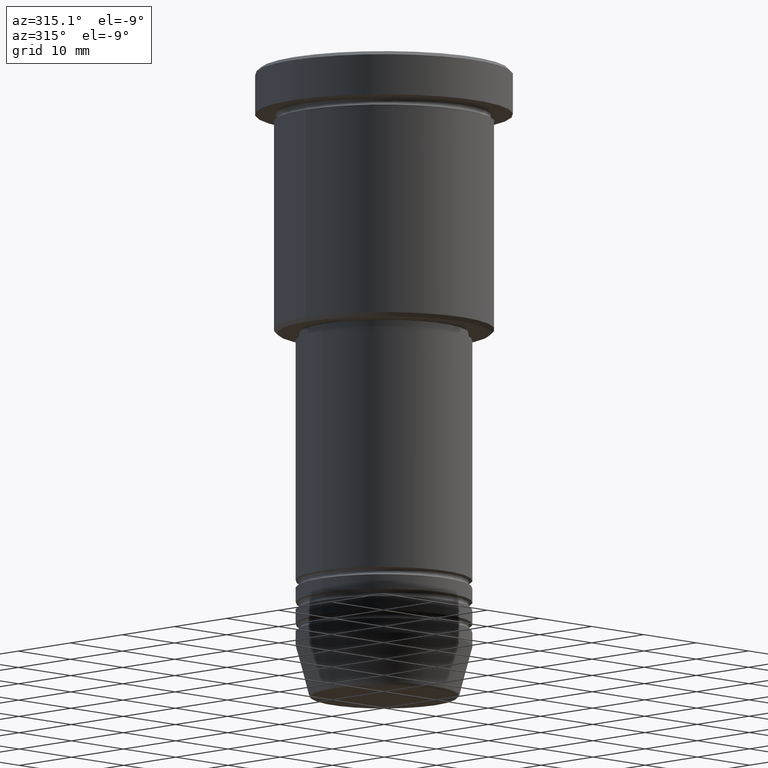
[diagram: clean part render]
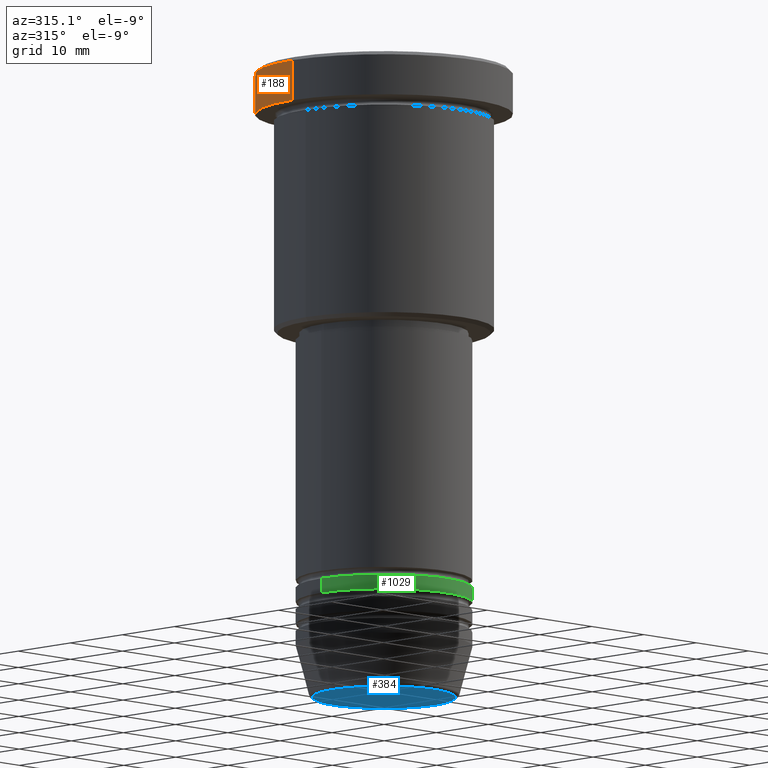
[diagram: same view with three faces highlighted in distinct colors, each labeled with its STEP entity id]
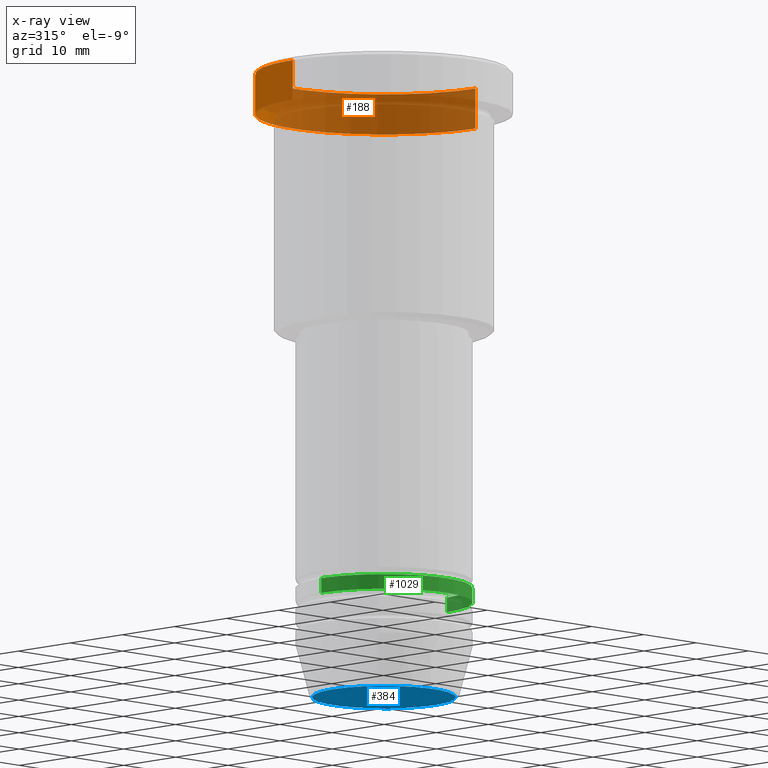
[diagram: x-ray of the same camera — body ghosted, the three highlighted faces saturated]
A machine part, auxiliary view with three faces highlighted in distinct colors.
The next image is the same camera in x-ray (body ghosted, the three faces saturated) — at least one of them is partly hidden behind the body in this view.
Their STEP definitions:

[orange] entity #188 — the highlighted cylindrical surface (partial cylindrical patch) has radius 17.5 mm, axis along (-0, -0, 1).
#18 = ORIENTED_EDGE ( 'NONE', *, *, #1087, .T. ) ;
#31 = VECTOR ( 'NONE', #926, 1000.000000000000000 ) ;
#74 = ORIENTED_EDGE ( 'NONE', *, *, #443, .T. ) ;
#78 = DIRECTION ( 'NONE',  ( -0.000000000000000000, -0.000000000000000000, 1.000000000000000000 ) ) ;
#90 = DIRECTION ( 'NONE',  ( 1.000000000000000000, 0.000000000000000000, 0.000000000000000000 ) ) ;
#101 = CIRCLE ( 'NONE', #631, 17.50000000000000000 ) ;
#116 = DIRECTION ( 'NONE',  ( 0.000000000000000000, 0.000000000000000000, -1.000000000000000000 ) ) ;
#188 = ADVANCED_FACE ( 'NONE', ( #367 ), #266, .T. ) ;
#242 = AXIS2_PLACEMENT_3D ( 'NONE', #276, #545, #90 ) ;
#266 = CYLINDRICAL_SURFACE ( 'NONE', #242, 17.50000000000000000 ) ;
#276 = CARTESIAN_POINT ( 'NONE',  ( 0.000000000000000000, 0.000000000000000000, 0.000000000000000000 ) ) ;
#348 = VERTEX_POINT ( 'NONE', #1032 ) ;
#366 = LINE ( 'NONE', #544, #1049 ) ;
#367 = FACE_OUTER_BOUND ( 'NONE', #499, .T. ) ;
#374 = CARTESIAN_POINT ( 'NONE',  ( -17.50000000000000000, 2.143131898507868248E-15, -0.4999999999999864553 ) ) ;
#381 = VERTEX_POINT ( 'NONE', #628 ) ;
#423 = EDGE_CURVE ( 'NONE', #348, #381, #913, .T. ) ;
#443 = EDGE_CURVE ( 'NONE', #664, #381, #573, .T. ) ;
#499 = EDGE_LOOP ( 'NONE', ( #18, #1117, #74, #986 ) ) ;
#544 = CARTESIAN_POINT ( 'NONE',  ( -17.50000000000000000, 2.143131898507868248E-15, 0.000000000000000000 ) ) ;
#545 = DIRECTION ( 'NONE',  ( -0.000000000000000000, -0.000000000000000000, 1.000000000000000000 ) ) ;
#573 = CIRCLE ( 'NONE', #778, 17.50000000000000000 ) ;
#613 = VERTEX_POINT ( 'NONE', #1173 ) ;
#628 = CARTESIAN_POINT ( 'NONE',  ( 17.50000000000000000, 0.000000000000000000, -0.4999999999999864553 ) ) ;
#631 = AXIS2_PLACEMENT_3D ( 'NONE', #805, #78, #1168 ) ;
#635 = EDGE_CURVE ( 'NONE', #613, #664, #366, .T. ) ;
#664 = VERTEX_POINT ( 'NONE', #374 ) ;
#737 = CARTESIAN_POINT ( 'NONE',  ( 17.50000000000000000, 0.000000000000000000, 0.000000000000000000 ) ) ;
#778 = AXIS2_PLACEMENT_3D ( 'NONE', #1025, #116, #1036 ) ;
#805 = CARTESIAN_POINT ( 'NONE',  ( 0.000000000000000000, 0.000000000000000000, -5.999999999999995559 ) ) ;
#913 = LINE ( 'NONE', #737, #31 ) ;
#926 = DIRECTION ( 'NONE',  ( -0.000000000000000000, -0.000000000000000000, 1.000000000000000000 ) ) ;
#986 = ORIENTED_EDGE ( 'NONE', *, *, #423, .F. ) ;
#1002 = DIRECTION ( 'NONE',  ( -0.000000000000000000, -0.000000000000000000, 1.000000000000000000 ) ) ;
#1025 = CARTESIAN_POINT ( 'NONE',  ( 0.000000000000000000, 0.000000000000000000, -0.4999999999999864553 ) ) ;
#1032 = CARTESIAN_POINT ( 'NONE',  ( 17.50000000000000000, 0.000000000000000000, -5.999999999999995559 ) ) ;
#1036 = DIRECTION ( 'NONE',  ( 1.000000000000000000, 0.000000000000000000, 0.000000000000000000 ) ) ;
#1049 = VECTOR ( 'NONE', #1002, 1000.000000000000000 ) ;
#1087 = EDGE_CURVE ( 'NONE', #348, #613, #101, .T. ) ;
#1117 = ORIENTED_EDGE ( 'NONE', *, *, #635, .T. ) ;
#1168 = DIRECTION ( 'NONE',  ( 1.000000000000000000, 0.000000000000000000, 0.000000000000000000 ) ) ;
#1173 = CARTESIAN_POINT ( 'NONE',  ( -17.50000000000000000, 2.143131898507868248E-15, -5.999999999999995559 ) ) ;

[blue] entity #384 — the highlighted planar face has unit normal (0, -0, 1).
#137 = DIRECTION ( 'NONE',  ( 1.000000000000000000, 0.000000000000000000, 0.000000000000000000 ) ) ;
#232 = DIRECTION ( 'NONE',  ( 0.000000000000000000, 0.000000000000000000, -1.000000000000000000 ) ) ;
#293 = AXIS2_PLACEMENT_3D ( 'NONE', #1007, #652, #1027 ) ;
#297 = AXIS2_PLACEMENT_3D ( 'NONE', #461, #1013, #671 ) ;
#313 = CARTESIAN_POINT ( 'NONE',  ( 0.000000000000000000, 0.000000000000000000, -86.00000000000000000 ) ) ;
#344 = CIRCLE ( 'NONE', #293, 9.740692158992658278 ) ;
#350 = EDGE_CURVE ( 'NONE', #527, #475, #519, .T. ) ;
#358 = EDGE_LOOP ( 'NONE', ( #550, #908 ) ) ;
#363 = FACE_OUTER_BOUND ( 'NONE', #358, .T. ) ;
#384 = ADVANCED_FACE ( 'NONE', ( #363 ), #816, .F. ) ;
#390 = CARTESIAN_POINT ( 'NONE',  ( -9.740692158992658278, 1.222463696683474604E-15, -86.00000000000000000 ) ) ;
#461 = CARTESIAN_POINT ( 'NONE',  ( 0.000000000000000000, 0.000000000000000000, -86.00000000000000000 ) ) ;
#475 = VERTEX_POINT ( 'NONE', #390 ) ;
#519 = CIRCLE ( 'NONE', #1014, 9.740692158992658278 ) ;
#527 = VERTEX_POINT ( 'NONE', #534 ) ;
#534 = CARTESIAN_POINT ( 'NONE',  ( 9.740692158992658278, 0.000000000000000000, -86.00000000000000000 ) ) ;
#550 = ORIENTED_EDGE ( 'NONE', *, *, #350, .T. ) ;
#652 = DIRECTION ( 'NONE',  ( 0.000000000000000000, 0.000000000000000000, -1.000000000000000000 ) ) ;
#671 = DIRECTION ( 'NONE',  ( 1.000000000000000000, 0.000000000000000000, 0.000000000000000000 ) ) ;
#816 = PLANE ( 'NONE',  #297 ) ;
#908 = ORIENTED_EDGE ( 'NONE', *, *, #1118, .T. ) ;
#1007 = CARTESIAN_POINT ( 'NONE',  ( 0.000000000000000000, 0.000000000000000000, -86.00000000000000000 ) ) ;
#1013 = DIRECTION ( 'NONE',  ( 0.000000000000000000, -0.000000000000000000, 1.000000000000000000 ) ) ;
#1014 = AXIS2_PLACEMENT_3D ( 'NONE', #313, #232, #137 ) ;
#1027 = DIRECTION ( 'NONE',  ( 1.000000000000000000, 0.000000000000000000, 0.000000000000000000 ) ) ;
#1118 = EDGE_CURVE ( 'NONE', #475, #527, #344, .T. ) ;

[green] entity #1029 — the highlighted cylindrical surface (partial cylindrical patch) has radius 12 mm, axis along (-0, -0, 1).
#6 = CARTESIAN_POINT ( 'NONE',  ( -12.00000000000000000, 1.469576158976823947E-15, -72.99999999999998579 ) ) ;
#24 = ORIENTED_EDGE ( 'NONE', *, *, #1057, .T. ) ;
#71 = DIRECTION ( 'NONE',  ( 1.000000000000000000, 0.000000000000000000, 0.000000000000000000 ) ) ;
#75 = CIRCLE ( 'NONE', #818, 12.00000000000000000 ) ;
#141 = DIRECTION ( 'NONE',  ( 1.000000000000000000, 0.000000000000000000, 0.000000000000000000 ) ) ;
#198 = CYLINDRICAL_SURFACE ( 'NONE', #326, 12.00000000000000000 ) ;
#211 = VERTEX_POINT ( 'NONE', #6 ) ;
#219 = EDGE_CURVE ( 'NONE', #743, #966, #263, .T. ) ;
#238 = ORIENTED_EDGE ( 'NONE', *, *, #278, .F. ) ;
#263 = LINE ( 'NONE', #979, #968 ) ;
#278 = EDGE_CURVE ( 'NONE', #514, #966, #515, .T. ) ;
#288 = DIRECTION ( 'NONE',  ( -0.000000000000000000, -0.000000000000000000, 1.000000000000000000 ) ) ;
#326 = AXIS2_PLACEMENT_3D ( 'NONE', #888, #994, #71 ) ;
#334 = EDGE_LOOP ( 'NONE', ( #394, #24, #360, #238 ) ) ;
#360 = ORIENTED_EDGE ( 'NONE', *, *, #219, .T. ) ;
#373 = FACE_OUTER_BOUND ( 'NONE', #334, .T. ) ;
#394 = ORIENTED_EDGE ( 'NONE', *, *, #648, .F. ) ;
#446 = CARTESIAN_POINT ( 'NONE',  ( -12.00000000000000000, 1.469576158976823947E-15, -70.99999999999998579 ) ) ;
#466 = CARTESIAN_POINT ( 'NONE',  ( -12.00000000000000000, 1.469576158976823947E-15, 0.000000000000000000 ) ) ;
#514 = VERTEX_POINT ( 'NONE', #446 ) ;
#515 = CIRCLE ( 'NONE', #970, 12.00000000000000000 ) ;
#629 = CARTESIAN_POINT ( 'NONE',  ( 0.000000000000000000, 0.000000000000000000, -72.99999999999998579 ) ) ;
#648 = EDGE_CURVE ( 'NONE', #211, #514, #819, .T. ) ;
#707 = CARTESIAN_POINT ( 'NONE',  ( 12.00000000000000000, 0.000000000000000000, -70.99999999999998579 ) ) ;
#718 = DIRECTION ( 'NONE',  ( -0.000000000000000000, -0.000000000000000000, 1.000000000000000000 ) ) ;
#743 = VERTEX_POINT ( 'NONE', #1121 ) ;
#818 = AXIS2_PLACEMENT_3D ( 'NONE', #629, #288, #980 ) ;
#819 = LINE ( 'NONE', #466, #834 ) ;
#834 = VECTOR ( 'NONE', #718, 1000.000000000000000 ) ;
#888 = CARTESIAN_POINT ( 'NONE',  ( 0.000000000000000000, 0.000000000000000000, 0.000000000000000000 ) ) ;
#935 = DIRECTION ( 'NONE',  ( -0.000000000000000000, -0.000000000000000000, 1.000000000000000000 ) ) ;
#942 = CARTESIAN_POINT ( 'NONE',  ( 0.000000000000000000, 0.000000000000000000, -70.99999999999998579 ) ) ;
#966 = VERTEX_POINT ( 'NONE', #707 ) ;
#968 = VECTOR ( 'NONE', #1073, 1000.000000000000000 ) ;
#970 = AXIS2_PLACEMENT_3D ( 'NONE', #942, #935, #141 ) ;
#979 = CARTESIAN_POINT ( 'NONE',  ( 12.00000000000000000, 0.000000000000000000, 0.000000000000000000 ) ) ;
#980 = DIRECTION ( 'NONE',  ( 1.000000000000000000, 0.000000000000000000, 0.000000000000000000 ) ) ;
#994 = DIRECTION ( 'NONE',  ( -0.000000000000000000, -0.000000000000000000, 1.000000000000000000 ) ) ;
#1029 = ADVANCED_FACE ( 'NONE', ( #373 ), #198, .T. ) ;
#1057 = EDGE_CURVE ( 'NONE', #211, #743, #75, .T. ) ;
#1073 = DIRECTION ( 'NONE',  ( -0.000000000000000000, -0.000000000000000000, 1.000000000000000000 ) ) ;
#1121 = CARTESIAN_POINT ( 'NONE',  ( 12.00000000000000000, 0.000000000000000000, -72.99999999999998579 ) ) ;